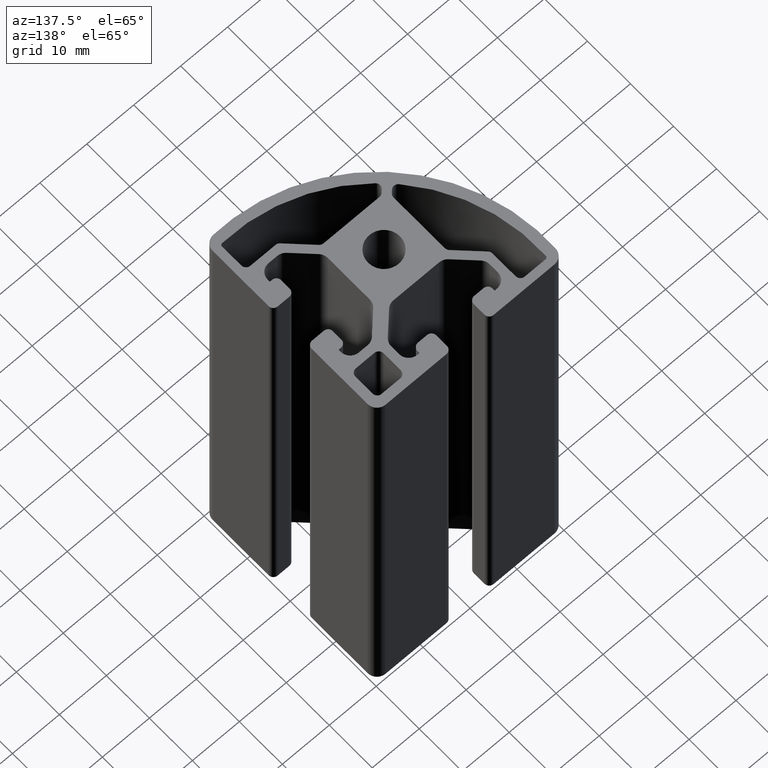
[diagram: clean part render]
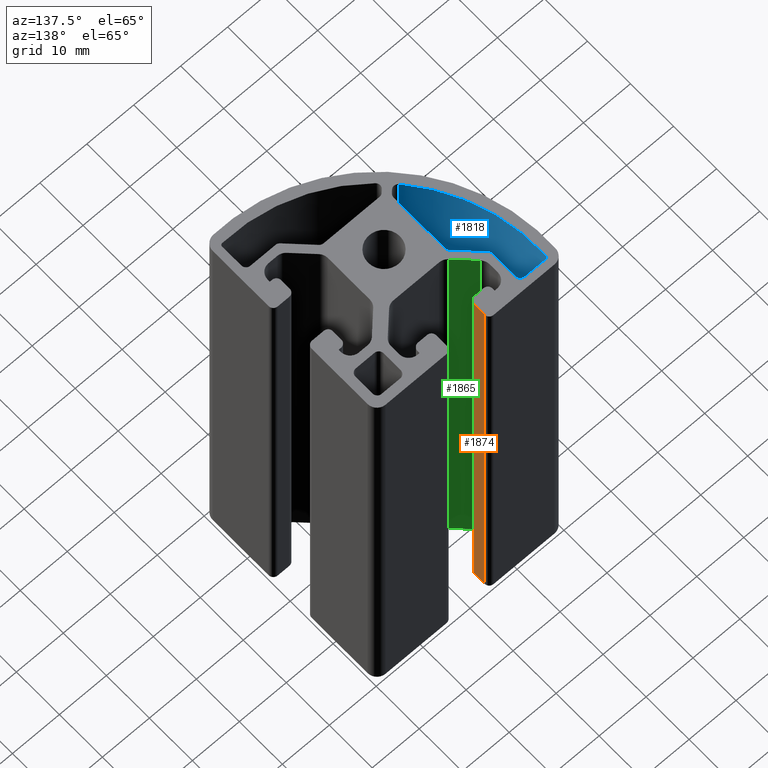
[diagram: same view with three faces highlighted in distinct colors, each labeled with its STEP entity id]
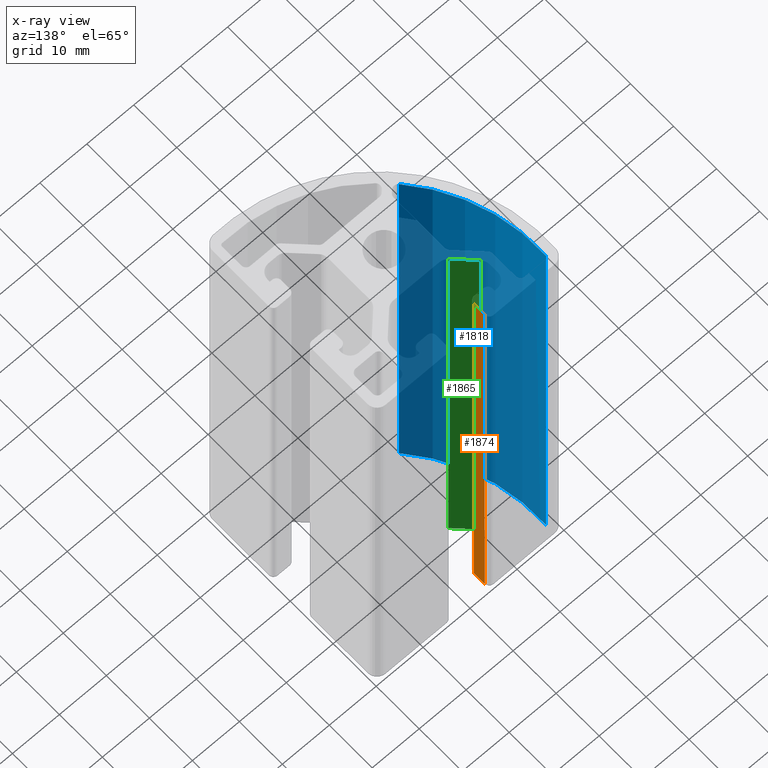
[diagram: x-ray of the same camera — body ghosted, the three highlighted faces saturated]
A machine part, auxiliary view with three faces highlighted in distinct colors.
The next image is the same camera in x-ray (body ghosted, the three faces saturated) — at least one of them is partly hidden behind the body in this view.
Their STEP definitions:

[orange] entity #1874 — the highlighted planar face has unit normal (-1, 0, 0).
#239=FACE_OUTER_BOUND('',#335,.T.);
#335=EDGE_LOOP('',(#1490,#1491,#1492,#1493));
#509=LINE('',#3102,#693);
#510=LINE('',#3105,#694);
#511=LINE('',#3107,#695);
#512=LINE('',#3108,#696);
#693=VECTOR('',#2537,100.);
#694=VECTOR('',#2540,2.5);
#695=VECTOR('',#2541,2.5);
#696=VECTOR('',#2542,100.);
#884=VERTEX_POINT('',#3098);
#885=VERTEX_POINT('',#3100);
#886=VERTEX_POINT('',#3104);
#887=VERTEX_POINT('',#3106);
#1141=EDGE_CURVE('',#885,#884,#509,.T.);
#1142=EDGE_CURVE('',#884,#886,#510,.T.);
#1143=EDGE_CURVE('',#887,#885,#511,.T.);
#1144=EDGE_CURVE('',#887,#886,#512,.T.);
#1490=ORIENTED_EDGE('',*,*,#1142,.F.);
#1491=ORIENTED_EDGE('',*,*,#1141,.F.);
#1492=ORIENTED_EDGE('',*,*,#1143,.F.);
#1493=ORIENTED_EDGE('',*,*,#1144,.T.);
#1787=PLANE('',#2049);
#1874=ADVANCED_FACE('',(#239),#1787,.F.);
#2049=AXIS2_PLACEMENT_3D('',#3103,#2538,#2539);
#2537=DIRECTION('',(0.,0.,1.));
#2538=DIRECTION('center_axis',(-1.,0.,0.));
#2539=DIRECTION('ref_axis',(0.,-1.,0.));
#2540=DIRECTION('',(0.,1.,0.));
#2541=DIRECTION('',(0.,-1.,0.));
#2542=DIRECTION('',(0.,0.,1.));
#3098=CARTESIAN_POINT('',(-3.99999601545469,16.50000423318,100.));
#3100=CARTESIAN_POINT('',(-3.99999601545469,16.50000423318,0.));
#3102=CARTESIAN_POINT('',(-3.99999601545469,16.50000423318,0.));
#3103=CARTESIAN_POINT('Origin',(-3.99999601545469,19.00000423318,0.));
#3104=CARTESIAN_POINT('',(-3.99999601545469,19.00000423318,100.));
#3105=CARTESIAN_POINT('',(-3.99999601545469,9.50000211659001,100.));
#3106=CARTESIAN_POINT('',(-3.99999601545469,19.00000423318,0.));
#3107=CARTESIAN_POINT('',(-3.99999601545469,9.50000211659001,0.));
#3108=CARTESIAN_POINT('',(-3.99999601545469,19.00000423318,0.));

[blue] entity #1818 — the highlighted cylindrical surface (partial cylindrical patch) has radius 34 mm, axis along (0, 0, 1).
#44=CIRCLE('',#1936,34.0000000000857);
#45=CIRCLE('',#1937,34.0000000000857);
#128=CYLINDRICAL_SURFACE('',#1935,34.0000000000857);
#183=FACE_OUTER_BOUND('',#278,.T.);
#278=EDGE_LOOP('',(#1268,#1269,#1270,#1271));
#398=LINE('',#2761,#582);
#399=LINE('',#2767,#583);
#582=VECTOR('',#2198,100.);
#583=VECTOR('',#2205,100.);
#768=VERTEX_POINT('',#2757);
#769=VERTEX_POINT('',#2759);
#770=VERTEX_POINT('',#2763);
#771=VERTEX_POINT('',#2765);
#972=EDGE_CURVE('',#769,#768,#398,.T.);
#973=EDGE_CURVE('',#768,#770,#44,.T.);
#974=EDGE_CURVE('',#771,#769,#45,.T.);
#975=EDGE_CURVE('',#771,#770,#399,.T.);
#1268=ORIENTED_EDGE('',*,*,#973,.F.);
#1269=ORIENTED_EDGE('',*,*,#972,.F.);
#1270=ORIENTED_EDGE('',*,*,#974,.F.);
#1271=ORIENTED_EDGE('',*,*,#975,.T.);
#1818=ADVANCED_FACE('',(#183),#128,.F.);
#1935=AXIS2_PLACEMENT_3D('',#2762,#2199,#2200);
#1936=AXIS2_PLACEMENT_3D('',#2764,#2201,#2202);
#1937=AXIS2_PLACEMENT_3D('',#2766,#2203,#2204);
#2198=DIRECTION('',(0.,0.,1.));
#2199=DIRECTION('center_axis',(0.,0.,1.));
#2200=DIRECTION('ref_axis',(0.998114003815571,-0.0613875833312433,0.));
#2201=DIRECTION('center_axis',(0.,0.,-1.));
#2202=DIRECTION('ref_axis',(0.998114003815571,-0.0613875833312433,0.));
#2203=DIRECTION('center_axis',(0.,0.,1.));
#2204=DIRECTION('ref_axis',(0.998114003815571,-0.0613875833312433,0.));
#2205=DIRECTION('',(0.,0.,1.));
#2757=CARTESIAN_POINT('',(-9.37982397686433,-6.75710064300876,100.));
#2759=CARTESIAN_POINT('',(-9.37982397686433,-6.75710064300876,0.));
#2761=CARTESIAN_POINT('',(-9.37982397686433,-6.75710064300876,0.));
#2762=CARTESIAN_POINT('Origin',(15.9373772001227,15.9373772000654,0.));
#2763=CARTESIAN_POINT('',(-17.9984989296922,18.0245550333329,100.));
#2764=CARTESIAN_POINT('Origin',(15.9373772001227,15.9373772000654,100.));
#2765=CARTESIAN_POINT('',(-17.9984989296922,18.0245550333329,0.));
#2766=CARTESIAN_POINT('Origin',(15.9373772001227,15.9373772000654,0.));
#2767=CARTESIAN_POINT('',(-17.9984989296922,18.0245550333329,0.));

[green] entity #1865 — the highlighted planar face has unit normal (-0.7071, -0.7071, 0).
#230=FACE_OUTER_BOUND('',#326,.T.);
#326=EDGE_LOOP('',(#1454,#1455,#1456,#1457));
#490=LINE('',#3048,#674);
#491=LINE('',#3051,#675);
#492=LINE('',#3053,#676);
#493=LINE('',#3054,#677);
#674=VECTOR('',#2484,100.);
#675=VECTOR('',#2487,5.08578974462328);
#676=VECTOR('',#2488,5.08578974462328);
#677=VECTOR('',#2489,100.);
#866=VERTEX_POINT('',#3044);
#867=VERTEX_POINT('',#3046);
#868=VERTEX_POINT('',#3050);
#869=VERTEX_POINT('',#3052);
#1114=EDGE_CURVE('',#867,#866,#490,.T.);
#1115=EDGE_CURVE('',#866,#868,#491,.T.);
#1116=EDGE_CURVE('',#869,#867,#492,.T.);
#1117=EDGE_CURVE('',#869,#868,#493,.T.);
#1454=ORIENTED_EDGE('',*,*,#1115,.F.);
#1455=ORIENTED_EDGE('',*,*,#1114,.F.);
#1456=ORIENTED_EDGE('',*,*,#1116,.F.);
#1457=ORIENTED_EDGE('',*,*,#1117,.T.);
#1782=PLANE('',#2032);
#1865=ADVANCED_FACE('',(#230),#1782,.F.);
#2032=AXIS2_PLACEMENT_3D('',#3049,#2485,#2486);
#2484=DIRECTION('',(0.,0.,1.));
#2485=DIRECTION('center_axis',(-0.707106781186548,-0.707106781186548,0.));
#2486=DIRECTION('ref_axis',(0.707106781186548,-0.707106781186548,0.));
#2487=DIRECTION('',(-0.707106781186548,0.707106781186548,0.));
#2488=DIRECTION('',(0.707106781186548,-0.707106781186548,0.));
#2489=DIRECTION('',(0.,0.,1.));
#3044=CARTESIAN_POINT('',(-6.31801855763116,8.0857892529724,100.));
#3046=CARTESIAN_POINT('',(-6.31801855763116,8.0857892529724,0.));
#3048=CARTESIAN_POINT('',(-6.31801855763116,8.0857892529724,0.));
#3049=CARTESIAN_POINT('Origin',(-9.91421497374328,11.6819856690845,0.));
#3050=CARTESIAN_POINT('',(-9.91421497374328,11.6819856690845,100.));
#3051=CARTESIAN_POINT('',(-4.51516481303633,6.28293550837757,100.));
#3052=CARTESIAN_POINT('',(-9.91421497374328,11.6819856690845,0.));
#3053=CARTESIAN_POINT('',(-4.51516481303633,6.28293550837757,0.));
#3054=CARTESIAN_POINT('',(-9.91421497374328,11.6819856690845,0.));